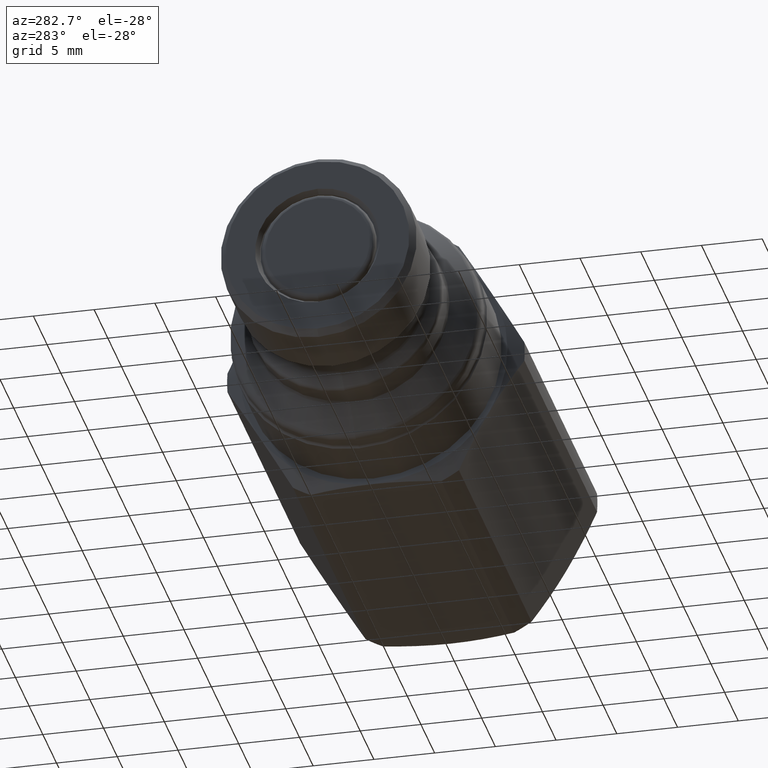
[diagram: clean part render]
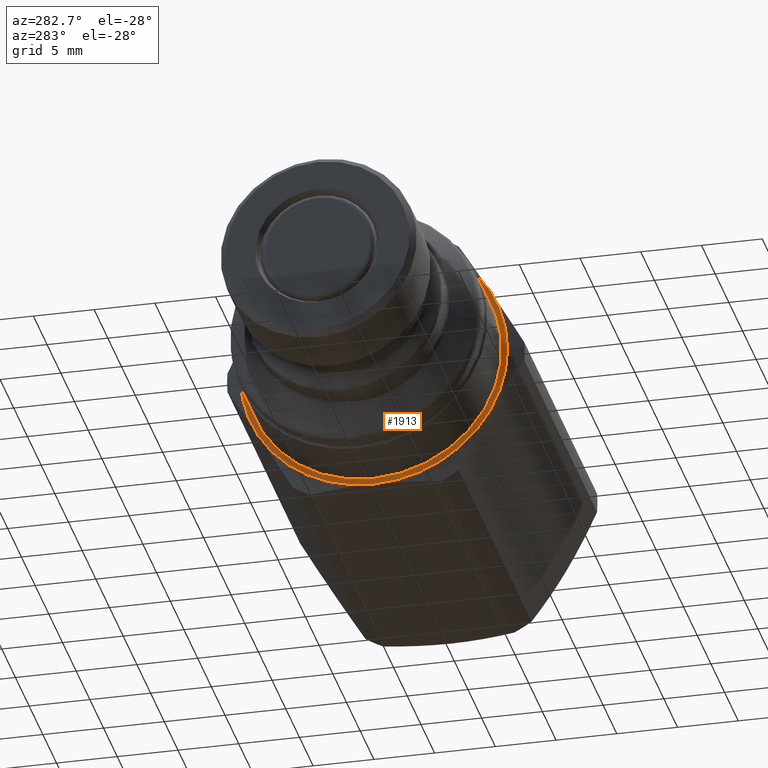
[diagram: same view with one face highlighted and labeled with its STEP entity id]
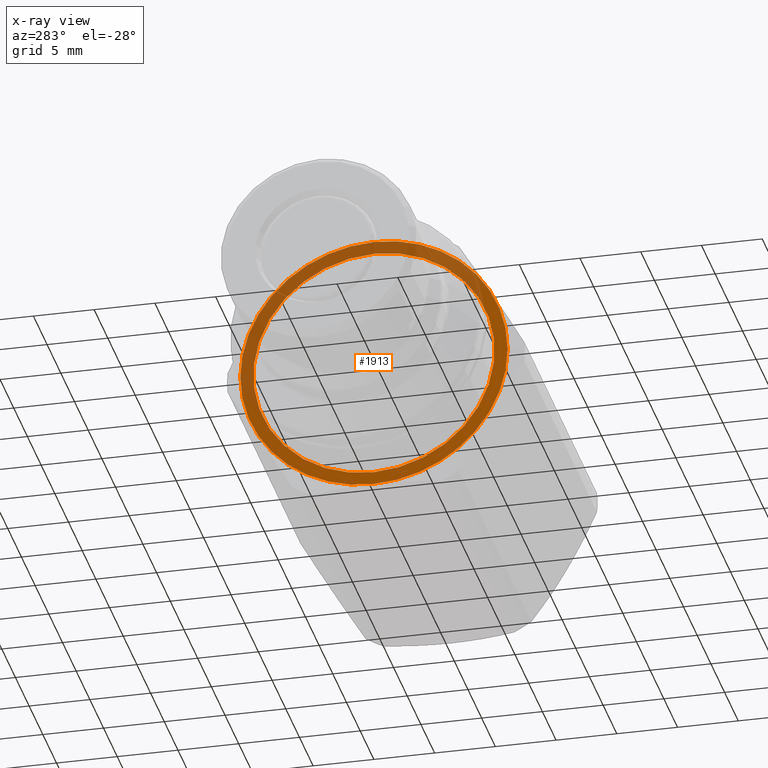
[diagram: x-ray of the same camera — body ghosted, the highlighted face saturated]
A machine part, auxiliary view. The second image highlights one B-rep face of the part: STEP entity #1913.
The next image is the same camera in x-ray: the body ghosted, the highlighted face saturated — about 44% of this face is hidden behind the body in this view.
In plain terms, the highlighted planar face has unit normal (-1, 0, 0).
Its self-contained STEP definition (entity closure, byte-faithful):
#93 = CARTESIAN_POINT ( 'NONE',  ( 20.65000000000000200, 0.0000000000000000000, 0.0000000000000000000 ) ) ;
#94 = DIRECTION ( 'NONE',  ( -1.000000000000000000, 0.0000000000000000000, 0.0000000000000000000 ) ) ;
#95 = DIRECTION ( 'NONE',  ( 0.0000000000000000000, 0.0000000000000000000, 1.000000000000000000 ) ) ;
#367 = CARTESIAN_POINT ( 'NONE',  ( 20.65000000000000200, 0.0000000000000000000, 0.0000000000000000000 ) ) ;
#368 = DIRECTION ( 'NONE',  ( -1.000000000000000000, 0.0000000000000000000, 0.0000000000000000000 ) ) ;
#369 = DIRECTION ( 'NONE',  ( 0.0000000000000000000, -5.665498452323003400E-016, 1.000000000000000000 ) ) ;
#370 = CARTESIAN_POINT ( 'NONE',  ( 20.65000000000000200, 0.0000000000000000000, 0.0000000000000000000 ) ) ;
#371 = DIRECTION ( 'NONE',  ( -1.000000000000000000, 0.0000000000000000000, 0.0000000000000000000 ) ) ;
#372 = DIRECTION ( 'NONE',  ( 0.0000000000000000000, -5.665498452323003400E-016, 1.000000000000000000 ) ) ;
#373 = CARTESIAN_POINT ( 'NONE',  ( 20.65000000000000200, 0.0000000000000000000, 0.0000000000000000000 ) ) ;
#374 = DIRECTION ( 'NONE',  ( -1.000000000000000000, 0.0000000000000000000, 0.0000000000000000000 ) ) ;
#375 = DIRECTION ( 'NONE',  ( 0.0000000000000000000, -5.665498452323003400E-016, 1.000000000000000000 ) ) ;
#376 = CARTESIAN_POINT ( 'NONE',  ( 20.65000000000000200, 0.0000000000000000000, 0.0000000000000000000 ) ) ;
#377 = DIRECTION ( 'NONE',  ( -1.000000000000000000, 0.0000000000000000000, 0.0000000000000000000 ) ) ;
#378 = DIRECTION ( 'NONE',  ( 0.0000000000000000000, -5.665498452323003400E-016, 1.000000000000000000 ) ) ;
#379 = CARTESIAN_POINT ( 'NONE',  ( 20.65000000000000200, 0.0000000000000000000, 0.0000000000000000000 ) ) ;
#380 = DIRECTION ( 'NONE',  ( -1.000000000000000000, 0.0000000000000000000, 0.0000000000000000000 ) ) ;
#381 = DIRECTION ( 'NONE',  ( 0.0000000000000000000, -5.665498452323003400E-016, 1.000000000000000000 ) ) ;
#382 = CARTESIAN_POINT ( 'NONE',  ( 20.65000000000000200, 0.0000000000000000000, 0.0000000000000000000 ) ) ;
#383 = DIRECTION ( 'NONE',  ( -1.000000000000000000, 0.0000000000000000000, 0.0000000000000000000 ) ) ;
#384 = DIRECTION ( 'NONE',  ( 0.0000000000000000000, -5.665498452323003400E-016, 1.000000000000000000 ) ) ;
#385 = CARTESIAN_POINT ( 'NONE',  ( 20.65000000000000200, 0.0000000000000000000, 0.0000000000000000000 ) ) ;
#386 = DIRECTION ( 'NONE',  ( -1.000000000000000000, 0.0000000000000000000, 0.0000000000000000000 ) ) ;
#387 = DIRECTION ( 'NONE',  ( 0.0000000000000000000, 0.0000000000000000000, 1.000000000000000000 ) ) ;
#447 = CARTESIAN_POINT ( 'NONE',  ( 20.65000000000000200, 9.526279441628821200, -5.499999999999999100 ) ) ;
#453 = CARTESIAN_POINT ( 'NONE',  ( 20.65000000000000200, -6.232048297555303800E-015, 11.00000000000000000 ) ) ;
#457 = CARTESIAN_POINT ( 'NONE',  ( 20.65000000000000200, 0.0000000000000000000, 9.929124401387126000 ) ) ;
#458 = CARTESIAN_POINT ( 'NONE',  ( 20.65000000000000200, -9.526279441628815900, -5.499999999999995600 ) ) ;
#462 = CARTESIAN_POINT ( 'NONE',  ( 20.65000000000000200, 9.526279441628819500, 5.499999999999996400 ) ) ;
#470 = CARTESIAN_POINT ( 'NONE',  ( 20.65000000000000200, 1.215967041649462300E-015, -9.929124401387126000 ) ) ;
#486 = CARTESIAN_POINT ( 'NONE',  ( 20.65000000000000200, 4.497324821578494300E-015, -10.99999999999999600 ) ) ;
#487 = CARTESIAN_POINT ( 'NONE',  ( 20.65000000000000200, -9.526279441628823000, 5.500000000000000900 ) ) ;
#575 = PLANE ( 'NONE',  #871 ) ;
#576 = CARTESIAN_POINT ( 'NONE',  ( 20.65000000000000200, 9.300000000000000700, 6.226302026041131600E-016 ) ) ;
#577 = DIRECTION ( 'NONE',  ( -1.000000000000000000, 0.0000000000000000000, 0.0000000000000000000 ) ) ;
#578 = DIRECTION ( 'NONE',  ( 0.0000000000000000000, -5.665498452323003400E-016, 1.000000000000000000 ) ) ;
#822 = AXIS2_PLACEMENT_3D ( 'NONE', #370, #371, #372 ) ;
#823 = AXIS2_PLACEMENT_3D ( 'NONE', #373, #374, #375 ) ;
#824 = AXIS2_PLACEMENT_3D ( 'NONE', #376, #377, #378 ) ;
#825 = AXIS2_PLACEMENT_3D ( 'NONE', #379, #380, #381 ) ;
#826 = AXIS2_PLACEMENT_3D ( 'NONE', #382, #383, #384 ) ;
#827 = AXIS2_PLACEMENT_3D ( 'NONE', #385, #386, #387 ) ;
#871 = AXIS2_PLACEMENT_3D ( 'NONE', #576, #577, #578 ) ;
#1124 = EDGE_LOOP ( 'NONE', ( #2049, #2126 ) ) ;
#1125 = EDGE_LOOP ( 'NONE', ( #2097, #2060, #2054, #2080, #2076, #2081 ) ) ;
#1290 = CIRCLE ( 'NONE', #1760, 9.929124401387126000 ) ;
#1351 = CIRCLE ( 'NONE', #2138, 11.00000000000000000 ) ;
#1352 = CIRCLE ( 'NONE', #822, 11.00000000000000000 ) ;
#1353 = CIRCLE ( 'NONE', #823, 11.00000000000000000 ) ;
#1354 = CIRCLE ( 'NONE', #824, 11.00000000000000000 ) ;
#1355 = CIRCLE ( 'NONE', #825, 11.00000000000000000 ) ;
#1356 = CIRCLE ( 'NONE', #826, 11.00000000000000000 ) ;
#1357 = CIRCLE ( 'NONE', #827, 9.929124401387126000 ) ;
#1426 = FACE_OUTER_BOUND ( 'NONE', #1125, .T. ) ;
#1427 = FACE_BOUND ( 'NONE', #1124, .T. ) ;
#1620 = EDGE_CURVE ( 'NONE', #1805, #1818, #1290, .T. ) ;
#1688 = EDGE_CURVE ( 'NONE', #1840, #1799, #1351, .T. ) ;
#1689 = EDGE_CURVE ( 'NONE', #1806, #1840, #1352, .T. ) ;
#1690 = EDGE_CURVE ( 'NONE', #1838, #1806, #1353, .T. ) ;
#1691 = EDGE_CURVE ( 'NONE', #1792, #1838, #1354, .T. ) ;
#1692 = EDGE_CURVE ( 'NONE', #1810, #1792, #1355, .T. ) ;
#1693 = EDGE_CURVE ( 'NONE', #1799, #1810, #1356, .T. ) ;
#1694 = EDGE_CURVE ( 'NONE', #1818, #1805, #1357, .T. ) ;
#1760 = AXIS2_PLACEMENT_3D ( 'NONE', #93, #94, #95 ) ;
#1792 = VERTEX_POINT ( 'NONE', #447 ) ;
#1799 = VERTEX_POINT ( 'NONE', #453 ) ;
#1805 = VERTEX_POINT ( 'NONE', #457 ) ;
#1806 = VERTEX_POINT ( 'NONE', #458 ) ;
#1810 = VERTEX_POINT ( 'NONE', #462 ) ;
#1818 = VERTEX_POINT ( 'NONE', #470 ) ;
#1838 = VERTEX_POINT ( 'NONE', #486 ) ;
#1840 = VERTEX_POINT ( 'NONE', #487 ) ;
#1913 = ADVANCED_FACE ( 'NONE', ( #1426, #1427 ), #575, .T. ) ;
#2049 = ORIENTED_EDGE ( 'NONE', *, *, #1620, .F. ) ;
#2054 = ORIENTED_EDGE ( 'NONE', *, *, #1691, .T. ) ;
#2060 = ORIENTED_EDGE ( 'NONE', *, *, #1692, .T. ) ;
#2076 = ORIENTED_EDGE ( 'NONE', *, *, #1689, .T. ) ;
#2080 = ORIENTED_EDGE ( 'NONE', *, *, #1690, .T. ) ;
#2081 = ORIENTED_EDGE ( 'NONE', *, *, #1688, .T. ) ;
#2097 = ORIENTED_EDGE ( 'NONE', *, *, #1693, .T. ) ;
#2126 = ORIENTED_EDGE ( 'NONE', *, *, #1694, .F. ) ;
#2138 = AXIS2_PLACEMENT_3D ( 'NONE', #367, #368, #369 ) ;